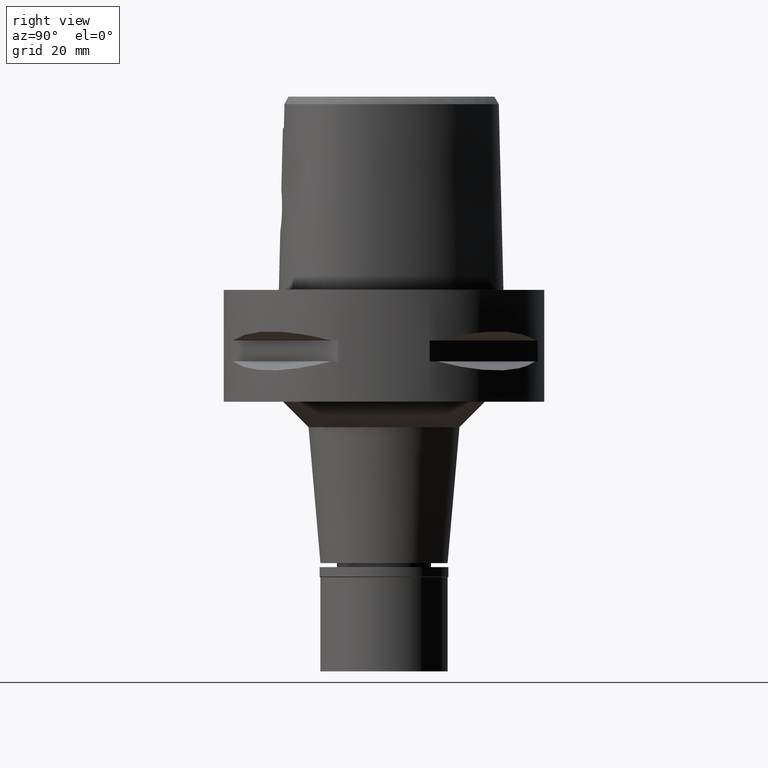
[diagram: clean part render]
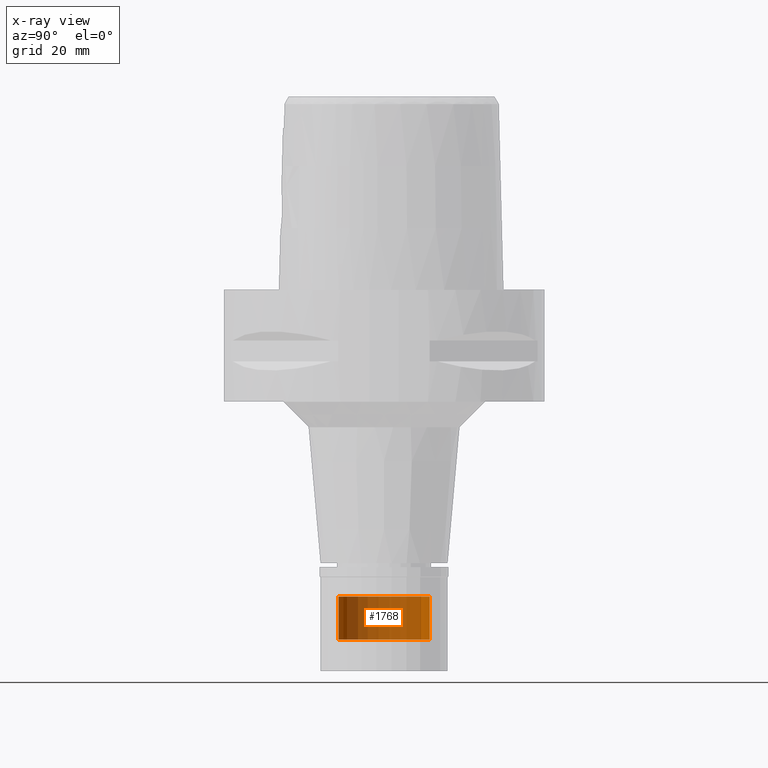
[diagram: x-ray — body ghosted, one internal face saturated and labeled with its STEP entity id]
A machine part, right view, then the same camera in x-ray: the body is ghosted and one INTERNAL B-rep face — a face not visible from any outside direction — is saturated and labeled: STEP entity #1768.
In plain terms, the highlighted cylindrical surface (partial cylindrical patch) has radius 9 mm, axis along (0, 0, -1).
Its self-contained STEP definition (entity closure, byte-faithful):
#161 = CARTESIAN_POINT ( 'NONE',  ( 0.0000000000000000000, 1.266774649037999887E-14, 3.439999999999999947 ) ) ;
#213 = CYLINDRICAL_SURFACE ( 'NONE', #4857, 9.000000000000000000 ) ;
#445 = CIRCLE ( 'NONE', #2332, 9.000000000000000000 ) ;
#571 = CARTESIAN_POINT ( 'NONE',  ( 0.0000000000000000000, -9.000000000000000000, -60.29999999999999716 ) ) ;
#622 = FACE_OUTER_BOUND ( 'NONE', #819, .T. ) ;
#657 = CARTESIAN_POINT ( 'NONE',  ( 0.0000000000000000000, 9.000000000000000000, -68.79999999999999716 ) ) ;
#703 = EDGE_CURVE ( 'NONE', #2524, #2545, #1449, .T. ) ;
#819 = EDGE_LOOP ( 'NONE', ( #4258, #1410, #4708, #1540 ) ) ;
#899 = DIRECTION ( 'NONE',  ( 0.0000000000000000000, 1.000000000000000000, 0.0000000000000000000 ) ) ;
#962 = DIRECTION ( 'NONE',  ( 0.0000000000000000000, 0.0000000000000000000, -1.000000000000000000 ) ) ;
#1250 = CARTESIAN_POINT ( 'NONE',  ( 0.0000000000000000000, 1.266774649037999887E-14, -68.79999999999999716 ) ) ;
#1410 = ORIENTED_EDGE ( 'NONE', *, *, #4517, .F. ) ;
#1449 = CIRCLE ( 'NONE', #3828, 9.000000000000000000 ) ;
#1540 = ORIENTED_EDGE ( 'NONE', *, *, #3557, .T. ) ;
#1709 = DIRECTION ( 'NONE',  ( 0.0000000000000000000, 0.0000000000000000000, -1.000000000000000000 ) ) ;
#1768 = ADVANCED_FACE ( 'NONE', ( #622 ), #213, .T. ) ;
#1789 = CARTESIAN_POINT ( 'NONE',  ( 0.0000000000000000000, -9.000000000000000000, -68.79999999999999716 ) ) ;
#1944 = CARTESIAN_POINT ( 'NONE',  ( 0.0000000000000000000, -9.000000000000000000, -60.29999999999999716 ) ) ;
#2246 = EDGE_CURVE ( 'NONE', #3332, #4364, #445, .T. ) ;
#2332 = AXIS2_PLACEMENT_3D ( 'NONE', #4690, #3481, #2801 ) ;
#2524 = VERTEX_POINT ( 'NONE', #657 ) ;
#2545 = VERTEX_POINT ( 'NONE', #1789 ) ;
#2728 = LINE ( 'NONE', #3602, #3103 ) ;
#2801 = DIRECTION ( 'NONE',  ( 0.0000000000000000000, -1.000000000000000000, 0.0000000000000000000 ) ) ;
#3097 = CARTESIAN_POINT ( 'NONE',  ( 0.0000000000000000000, 9.000000000000000000, -60.29999999999999716 ) ) ;
#3103 = VECTOR ( 'NONE', #1709, 1000.000000000000000 ) ;
#3332 = VERTEX_POINT ( 'NONE', #1944 ) ;
#3481 = DIRECTION ( 'NONE',  ( 0.0000000000000000000, 0.0000000000000000000, -1.000000000000000000 ) ) ;
#3557 = EDGE_CURVE ( 'NONE', #4364, #2524, #2728, .T. ) ;
#3602 = CARTESIAN_POINT ( 'NONE',  ( 0.0000000000000000000, 9.000000000000000000, -60.29999999999999716 ) ) ;
#3828 = AXIS2_PLACEMENT_3D ( 'NONE', #1250, #4308, #899 ) ;
#3994 = DIRECTION ( 'NONE',  ( 0.0000000000000000000, 0.0000000000000000000, -1.000000000000000000 ) ) ;
#4205 = VECTOR ( 'NONE', #962, 1000.000000000000000 ) ;
#4258 = ORIENTED_EDGE ( 'NONE', *, *, #703, .T. ) ;
#4308 = DIRECTION ( 'NONE',  ( 0.0000000000000000000, 0.0000000000000000000, 1.000000000000000000 ) ) ;
#4362 = LINE ( 'NONE', #571, #4205 ) ;
#4364 = VERTEX_POINT ( 'NONE', #3097 ) ;
#4517 = EDGE_CURVE ( 'NONE', #3332, #2545, #4362, .T. ) ;
#4690 = CARTESIAN_POINT ( 'NONE',  ( 0.0000000000000000000, 1.266774649037999887E-14, -60.29999999999999716 ) ) ;
#4708 = ORIENTED_EDGE ( 'NONE', *, *, #2246, .T. ) ;
#4752 = DIRECTION ( 'NONE',  ( 0.0000000000000000000, -1.000000000000000000, 0.0000000000000000000 ) ) ;
#4857 = AXIS2_PLACEMENT_3D ( 'NONE', #161, #3994, #4752 ) ;